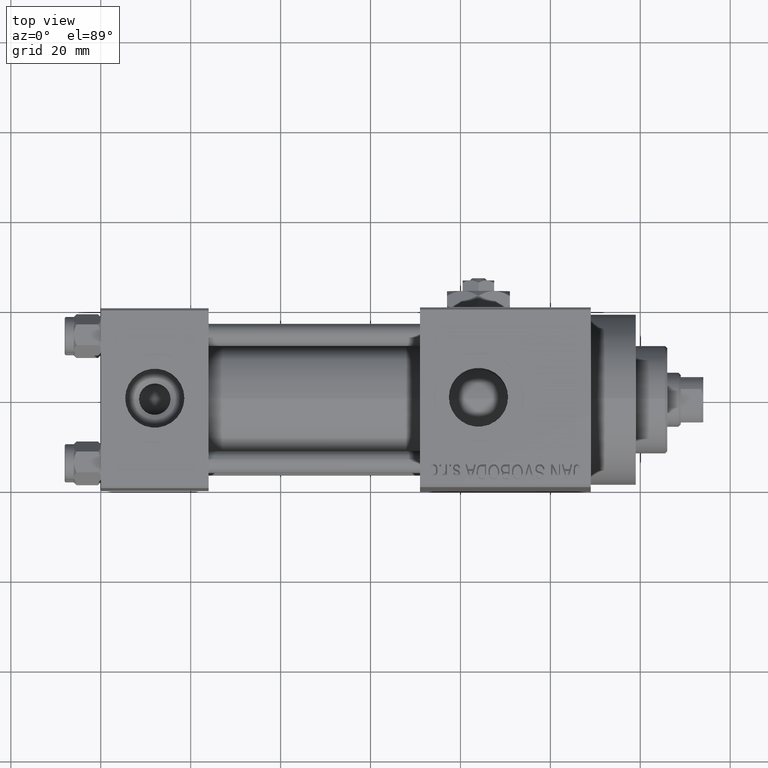
[diagram: clean part render]
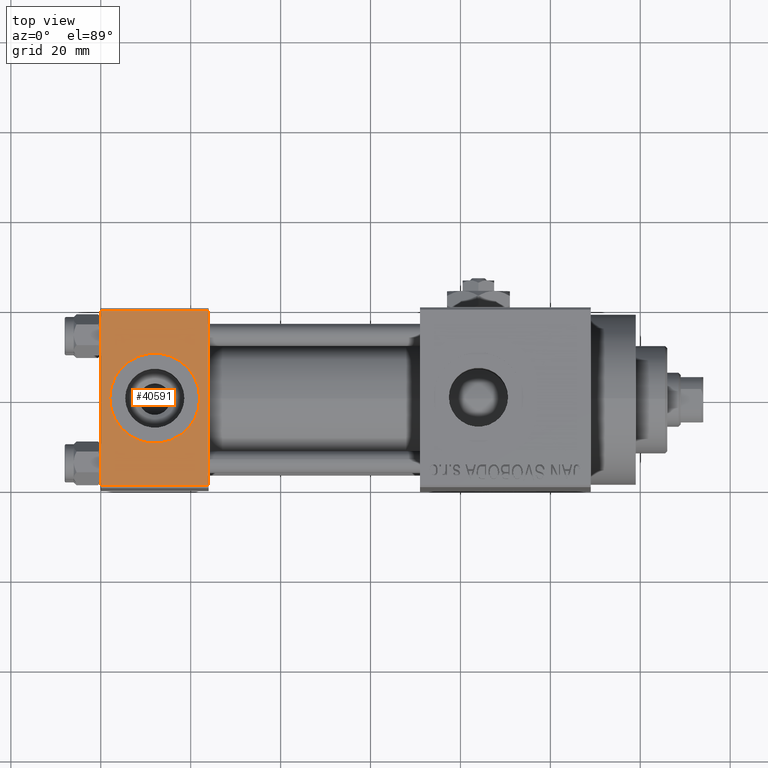
[diagram: same view with one face highlighted and labeled with its STEP entity id]
A machine part, top view. The second image highlights one B-rep face of the part: STEP entity #40591.
In plain terms, the highlighted planar face has unit normal (0, 0, -1).
Its self-contained STEP definition (entity closure, byte-faithful):
#611 = ORIENTED_EDGE ( 'NONE', *, *, #5939, .T. ) ;
#1437 = EDGE_LOOP ( 'NONE', ( #611, #26016, #35457, #38557 ) ) ;
#2150 = VECTOR ( 'NONE', #14208, 1000.000000000000000 ) ;
#3382 = EDGE_CURVE ( 'NONE', #13749, #38170, #11529, .T. ) ;
#4294 = CARTESIAN_POINT ( 'NONE',  ( 0.000000000000000000, 19.50000000000000000, 20.00000000000000000 ) ) ;
#5229 = EDGE_CURVE ( 'NONE', #5912, #9426, #36729, .T. ) ;
#5257 = AXIS2_PLACEMENT_3D ( 'NONE', #15103, #22777, #44592 ) ;
#5912 = VERTEX_POINT ( 'NONE', #11514 ) ;
#5939 = EDGE_CURVE ( 'NONE', #11624, #44359, #20662, .T. ) ;
#6094 = VECTOR ( 'NONE', #39461, 1000.000000000000000 ) ;
#9249 = DIRECTION ( 'NONE',  ( 1.000000000000000000, 0.000000000000000000, 0.000000000000000000 ) ) ;
#9426 = VERTEX_POINT ( 'NONE', #26697 ) ;
#10527 = PLANE ( 'NONE',  #13745 ) ;
#11514 = CARTESIAN_POINT ( 'NONE',  ( 24.00000000000000000, 19.50000000000000000, 20.00000000000000000 ) ) ;
#11529 = CIRCLE ( 'NONE', #48726, 9.999999999999998224 ) ;
#11624 = VERTEX_POINT ( 'NONE', #4294 ) ;
#11867 = ORIENTED_EDGE ( 'NONE', *, *, #3382, .F. ) ;
#12745 = CARTESIAN_POINT ( 'NONE',  ( 0.000000000000000000, 20.00000000000000000, 20.00000000000000000 ) ) ;
#12759 = VECTOR ( 'NONE', #9249, 1000.000000000000000 ) ;
#13745 = AXIS2_PLACEMENT_3D ( 'NONE', #41213, #36769, #40974 ) ;
#13749 = VERTEX_POINT ( 'NONE', #25364 ) ;
#14208 = DIRECTION ( 'NONE',  ( 0.000000000000000000, -1.000000000000000000, -2.602085213965210149E-16 ) ) ;
#15103 = CARTESIAN_POINT ( 'NONE',  ( 12.00000000000000000, 1.540743955509788682E-30, 19.99999999999999645 ) ) ;
#15760 = CARTESIAN_POINT ( 'NONE',  ( 2.000000000000003553, 1.224646799147354440E-15, 19.99999999999999645 ) ) ;
#17159 = CARTESIAN_POINT ( 'NONE',  ( 24.00000000000000000, -19.49999999999999289, 19.99999999999998934 ) ) ;
#17717 = FACE_BOUND ( 'NONE', #30508, .T. ) ;
#18590 = CARTESIAN_POINT ( 'NONE',  ( 0.000000000000000000, -19.49999999999999289, 19.99999999999998934 ) ) ;
#18870 = ORIENTED_EDGE ( 'NONE', *, *, #47248, .F. ) ;
#19397 = CARTESIAN_POINT ( 'NONE',  ( 0.000000000000000000, 19.50000000000000000, 20.00000000000000000 ) ) ;
#20662 = LINE ( 'NONE', #12745, #6094 ) ;
#22777 = DIRECTION ( 'NONE',  ( 0.000000000000000000, 0.000000000000000000, 1.000000000000000000 ) ) ;
#24370 = DIRECTION ( 'NONE',  ( 0.000000000000000000, 0.000000000000000000, 1.000000000000000000 ) ) ;
#25364 = CARTESIAN_POINT ( 'NONE',  ( 22.00000000000000000, 1.540743955509788682E-30, 19.99999999999999645 ) ) ;
#25508 = DIRECTION ( 'NONE',  ( 1.000000000000000000, 0.000000000000000000, 0.000000000000000000 ) ) ;
#26016 = ORIENTED_EDGE ( 'NONE', *, *, #31454, .T. ) ;
#26697 = CARTESIAN_POINT ( 'NONE',  ( 24.00000000000000000, -19.49999999999999289, 19.99999999999998934 ) ) ;
#30508 = EDGE_LOOP ( 'NONE', ( #11867, #18870 ) ) ;
#31454 = EDGE_CURVE ( 'NONE', #44359, #9426, #39684, .T. ) ;
#35457 = ORIENTED_EDGE ( 'NONE', *, *, #5229, .F. ) ;
#36729 = LINE ( 'NONE', #48130, #2150 ) ;
#36769 = DIRECTION ( 'NONE',  ( 0.000000000000000000, 2.602085213965210149E-16, -1.000000000000000000 ) ) ;
#37011 = FACE_OUTER_BOUND ( 'NONE', #1437, .T. ) ;
#37715 = VECTOR ( 'NONE', #40965, 1000.000000000000000 ) ;
#38170 = VERTEX_POINT ( 'NONE', #15760 ) ;
#38557 = ORIENTED_EDGE ( 'NONE', *, *, #48563, .T. ) ;
#39461 = DIRECTION ( 'NONE',  ( 0.000000000000000000, -1.000000000000000000, -2.602085213965210149E-16 ) ) ;
#39684 = LINE ( 'NONE', #17159, #12759 ) ;
#40591 = ADVANCED_FACE ( 'NONE', ( #17717, #37011 ), #10527, .F. ) ;
#40965 = DIRECTION ( 'NONE',  ( -1.000000000000000000, 0.000000000000000000, 0.000000000000000000 ) ) ;
#40974 = DIRECTION ( 'NONE',  ( 0.000000000000000000, 1.000000000000000000, 2.602085213965210149E-16 ) ) ;
#41213 = CARTESIAN_POINT ( 'NONE',  ( 24.00000000000000000, 20.00000000000000000, 20.00000000000000000 ) ) ;
#41692 = LINE ( 'NONE', #19397, #37715 ) ;
#43202 = CARTESIAN_POINT ( 'NONE',  ( 12.00000000000000000, 1.540743955509788682E-30, 19.99999999999999645 ) ) ;
#44010 = CIRCLE ( 'NONE', #5257, 9.999999999999998224 ) ;
#44359 = VERTEX_POINT ( 'NONE', #18590 ) ;
#44592 = DIRECTION ( 'NONE',  ( 1.000000000000000000, 0.000000000000000000, 0.000000000000000000 ) ) ;
#47248 = EDGE_CURVE ( 'NONE', #38170, #13749, #44010, .T. ) ;
#48130 = CARTESIAN_POINT ( 'NONE',  ( 24.00000000000000000, 20.00000000000000000, 20.00000000000000000 ) ) ;
#48563 = EDGE_CURVE ( 'NONE', #5912, #11624, #41692, .T. ) ;
#48726 = AXIS2_PLACEMENT_3D ( 'NONE', #43202, #24370, #25508 ) ;